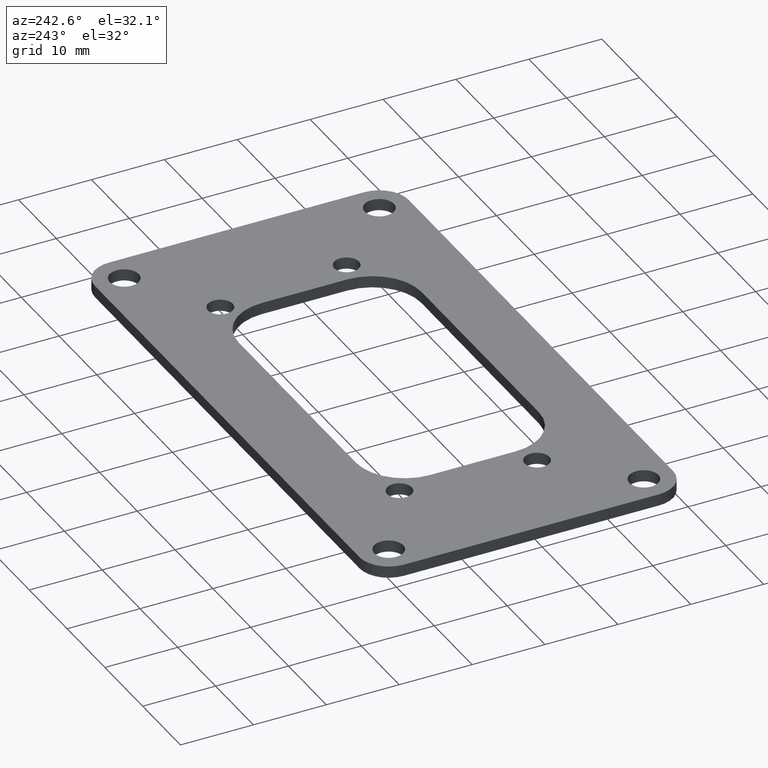
[diagram: clean part render]
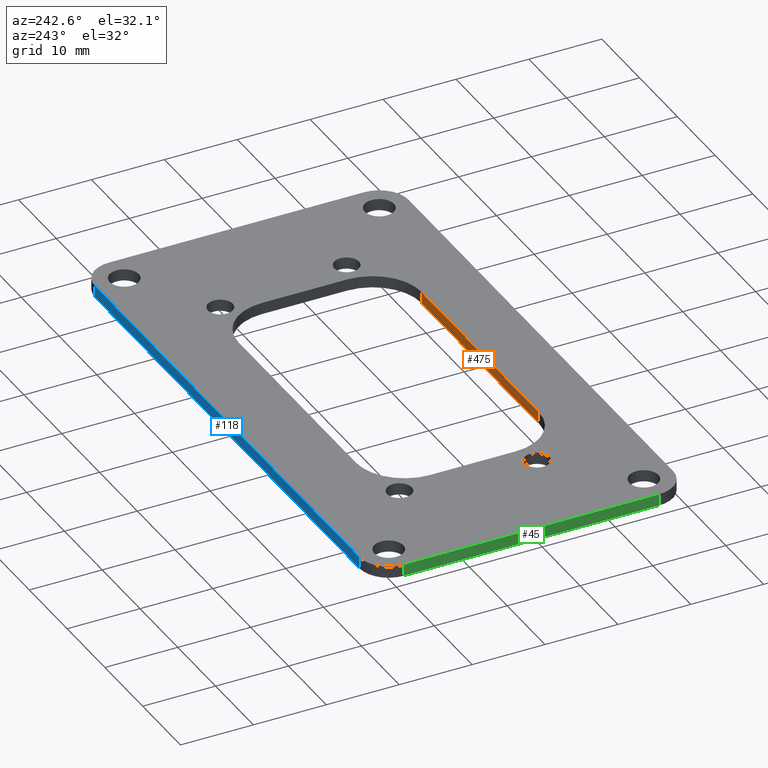
[diagram: same view with three faces highlighted in distinct colors, each labeled with its STEP entity id]
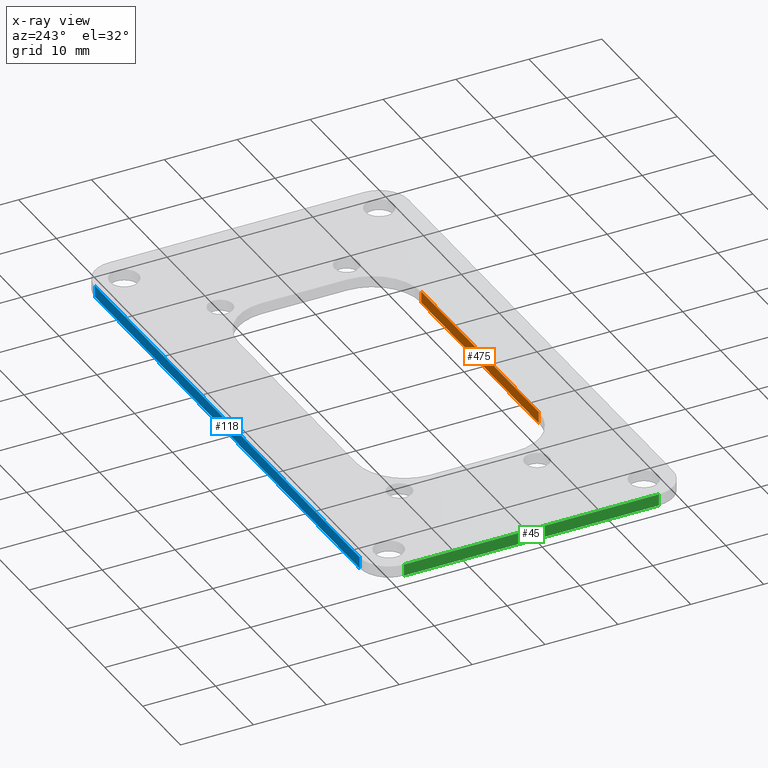
[diagram: x-ray of the same camera — body ghosted, the three highlighted faces saturated]
A machine part, auxiliary view with three faces highlighted in distinct colors.
The next image is the same camera in x-ray (body ghosted, the three faces saturated) — at least one of them is partly hidden behind the body in this view.
Their STEP definitions:

[orange] entity #475 — the highlighted planar face has unit normal (0, -1, 0).
#437 = EDGE_CURVE('',#438,#440,#442,.T.);
#438 = VERTEX_POINT('',#439);
#439 = CARTESIAN_POINT('',(23.475,8.319,0.));
#440 = VERTEX_POINT('',#441);
#441 = CARTESIAN_POINT('',(23.475,8.319,1.60000442));
#442 = LINE('',#443,#444);
#443 = CARTESIAN_POINT('',(23.475,8.319,0.));
#444 = VECTOR('',#445,1.);
#445 = DIRECTION('',(0.,0.,1.));
#475 = ADVANCED_FACE('',(#476),#501,.F.);
#476 = FACE_BOUND('',#477,.F.);
#477 = EDGE_LOOP('',(#478,#488,#494,#495));
#478 = ORIENTED_EDGE('',*,*,#479,.T.);
#479 = EDGE_CURVE('',#480,#482,#484,.T.);
#480 = VERTEX_POINT('',#481);
#481 = CARTESIAN_POINT('',(54.5,8.319,0.));
#482 = VERTEX_POINT('',#483);
#483 = CARTESIAN_POINT('',(54.5,8.319,1.60000442));
#484 = LINE('',#485,#486);
#485 = CARTESIAN_POINT('',(54.5,8.319,0.));
#486 = VECTOR('',#487,1.);
#487 = DIRECTION('',(0.,0.,1.));
#488 = ORIENTED_EDGE('',*,*,#489,.T.);
#489 = EDGE_CURVE('',#482,#440,#490,.T.);
#490 = LINE('',#491,#492);
#491 = CARTESIAN_POINT('',(54.5,8.319,1.60000442));
#492 = VECTOR('',#493,1.);
#493 = DIRECTION('',(-1.,0.,0.));
#494 = ORIENTED_EDGE('',*,*,#437,.F.);
#495 = ORIENTED_EDGE('',*,*,#496,.F.);
#496 = EDGE_CURVE('',#480,#438,#497,.T.);
#497 = LINE('',#498,#499);
#498 = CARTESIAN_POINT('',(54.5,8.319,0.));
#499 = VECTOR('',#500,1.);
#500 = DIRECTION('',(-1.,0.,0.));
#501 = PLANE('',#502);
#502 = AXIS2_PLACEMENT_3D('',#503,#504,#505);
#503 = CARTESIAN_POINT('',(54.5,8.319,0.));
#504 = DIRECTION('',(0.,-1.,0.));
#505 = DIRECTION('',(-1.,0.,0.));

[blue] entity #118 — the highlighted planar face has unit normal (0, 1, 0).
#91 = VERTEX_POINT('',#92);
#92 = CARTESIAN_POINT('',(4.,43.,1.60000442));
#99 = EDGE_CURVE('',#100,#91,#102,.T.);
#100 = VERTEX_POINT('',#101);
#101 = CARTESIAN_POINT('',(4.,43.,0.));
#102 = LINE('',#103,#104);
#103 = CARTESIAN_POINT('',(4.,43.,0.));
#104 = VECTOR('',#105,1.);
#105 = DIRECTION('',(0.,0.,1.));
#118 = ADVANCED_FACE('',(#119),#144,.T.);
#119 = FACE_BOUND('',#120,.T.);
#120 = EDGE_LOOP('',(#121,#122,#130,#138));
#121 = ORIENTED_EDGE('',*,*,#99,.T.);
#122 = ORIENTED_EDGE('',*,*,#123,.T.);
#123 = EDGE_CURVE('',#91,#124,#126,.T.);
#124 = VERTEX_POINT('',#125);
#125 = CARTESIAN_POINT('',(74.,43.,1.60000442));
#126 = LINE('',#127,#128);
#127 = CARTESIAN_POINT('',(4.,43.,1.60000442));
#128 = VECTOR('',#129,1.);
#129 = DIRECTION('',(1.,0.,0.));
#130 = ORIENTED_EDGE('',*,*,#131,.F.);
#131 = EDGE_CURVE('',#132,#124,#134,.T.);
#132 = VERTEX_POINT('',#133);
#133 = CARTESIAN_POINT('',(74.,43.,0.));
#134 = LINE('',#135,#136);
#135 = CARTESIAN_POINT('',(74.,43.,0.));
#136 = VECTOR('',#137,1.);
#137 = DIRECTION('',(0.,0.,1.));
#138 = ORIENTED_EDGE('',*,*,#139,.F.);
#139 = EDGE_CURVE('',#100,#132,#140,.T.);
#140 = LINE('',#141,#142);
#141 = CARTESIAN_POINT('',(4.,43.,0.));
#142 = VECTOR('',#143,1.);
#143 = DIRECTION('',(1.,0.,0.));
#144 = PLANE('',#145);
#145 = AXIS2_PLACEMENT_3D('',#146,#147,#148);
#146 = CARTESIAN_POINT('',(4.,43.,0.));
#147 = DIRECTION('',(0.,1.,0.));
#148 = DIRECTION('',(1.,0.,0.));

[green] entity #45 — the highlighted planar face has unit normal (-1, 0, 0).
#45 = ADVANCED_FACE('',(#46),#80,.T.);
#46 = FACE_BOUND('',#47,.T.);
#47 = EDGE_LOOP('',(#48,#58,#66,#74));
#48 = ORIENTED_EDGE('',*,*,#49,.T.);
#49 = EDGE_CURVE('',#50,#52,#54,.T.);
#50 = VERTEX_POINT('',#51);
#51 = CARTESIAN_POINT('',(-8.881784154862E-16,4.,0.));
#52 = VERTEX_POINT('',#53);
#53 = CARTESIAN_POINT('',(-8.881784154862E-16,4.,1.60000442));
#54 = LINE('',#55,#56);
#55 = CARTESIAN_POINT('',(-8.881784154862E-16,4.,0.));
#56 = VECTOR('',#57,1.);
#57 = DIRECTION('',(0.,0.,1.));
#58 = ORIENTED_EDGE('',*,*,#59,.T.);
#59 = EDGE_CURVE('',#52,#60,#62,.T.);
#60 = VERTEX_POINT('',#61);
#61 = CARTESIAN_POINT('',(-8.881784197001E-16,39.,1.60000442));
#62 = LINE('',#63,#64);
#63 = CARTESIAN_POINT('',(0.,4.,1.60000442));
#64 = VECTOR('',#65,1.);
#65 = DIRECTION('',(0.,1.,0.));
#66 = ORIENTED_EDGE('',*,*,#67,.F.);
#67 = EDGE_CURVE('',#68,#60,#70,.T.);
#68 = VERTEX_POINT('',#69);
#69 = CARTESIAN_POINT('',(-8.881784197001E-16,39.,0.));
#70 = LINE('',#71,#72);
#71 = CARTESIAN_POINT('',(-8.881784197001E-16,39.,0.));
#72 = VECTOR('',#73,1.);
#73 = DIRECTION('',(0.,0.,1.));
#74 = ORIENTED_EDGE('',*,*,#75,.F.);
#75 = EDGE_CURVE('',#50,#68,#76,.T.);
#76 = LINE('',#77,#78);
#77 = CARTESIAN_POINT('',(0.,4.,0.));
#78 = VECTOR('',#79,1.);
#79 = DIRECTION('',(0.,1.,0.));
#80 = PLANE('',#81);
#81 = AXIS2_PLACEMENT_3D('',#82,#83,#84);
#82 = CARTESIAN_POINT('',(0.,4.,0.));
#83 = DIRECTION('',(-1.,0.,0.));
#84 = DIRECTION('',(0.,1.,0.));